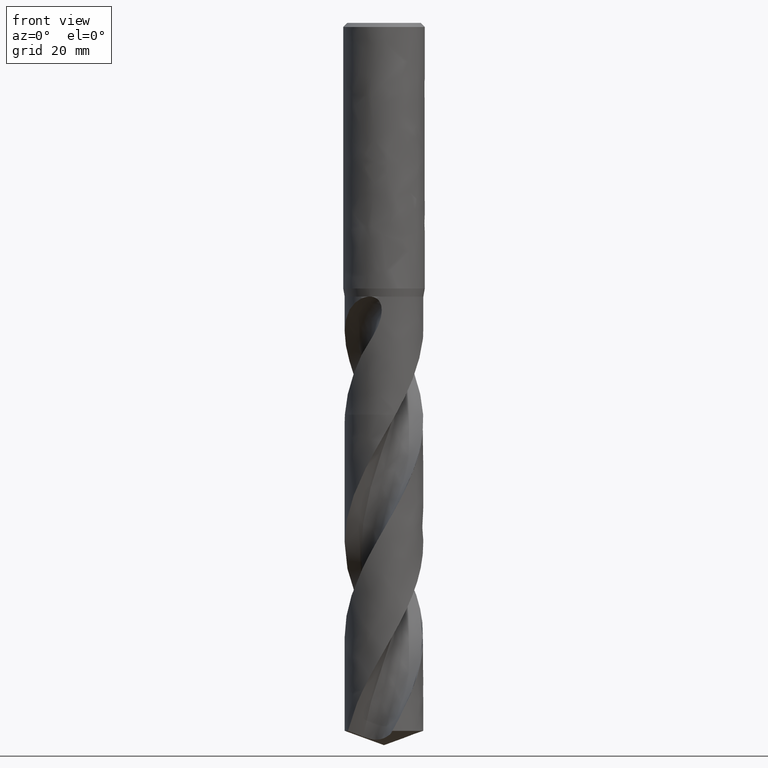
[diagram: clean part render]
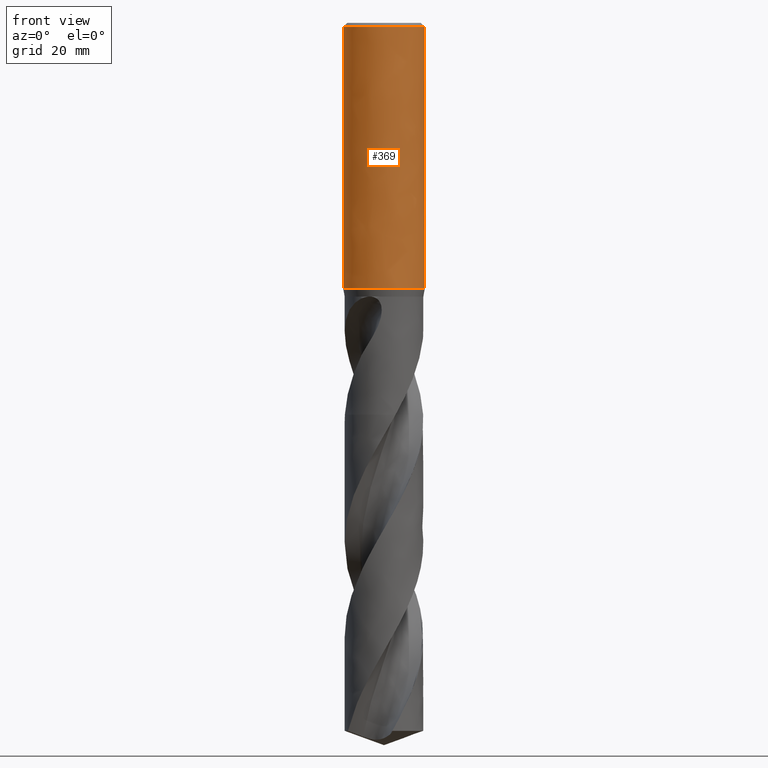
[diagram: same view with one face highlighted and labeled with its STEP entity id]
A machine part, front view. The second image highlights one B-rep face of the part: STEP entity #369.
In plain terms, the highlighted face is a freeform B-spline surface patch.
Its self-contained STEP definition (entity closure, byte-faithful):
#261 = VERTEX_POINT('', #262);
#262 = CARTESIAN_POINT('', (-7., 3.2213109404772E-15, -45.608));
#268 = EDGE_CURVE('', #261, #261, #269, .T.);
#269 = CIRCLE('', #270, 7.);
#270 = AXIS2_PLACEMENT_3D('', #271, #272, #273);
#271 = CARTESIAN_POINT('', (1.71002610419105E-31, 2.79268456077562E-15, -45.608));
#272 = DIRECTION('', (3.74939945665464E-33, 6.12323399573677E-17, -1.));
#273 = DIRECTION('', (-1., 6.12323399573677E-17, 0.));
#318 = VERTEX_POINT('', #319);
#319 = CARTESIAN_POINT('', (-7., 4.71489017671731E-16, -0.700000000000003));
#335 = EDGE_CURVE('', #318, #318, #336, .T.);
#336 = CIRCLE('', #337, 6.99999999999998);
#337 = AXIS2_PLACEMENT_3D('', #338, #339, #340);
#338 = CARTESIAN_POINT('', (2.62457961965824E-33, 4.28626379701575E-17, -0.700000000000003));
#339 = DIRECTION('', (3.74939945665464E-33, 6.12323399573677E-17, -1.));
#340 = DIRECTION('', (-1., 6.12323399573677E-17, 0.));
#369 = ADVANCED_FACE('', (#370, #381), #549, .T.);
#370 = FACE_OUTER_BOUND('', #371, .T.);
#371 = EDGE_LOOP('', (#372, #378, #379, #380));
#372 = ORIENTED_EDGE('', *, *, #373, .T.);
#373 = EDGE_CURVE('', #261, #318, #374, .T.);
#374 = LINE('', #375, #376);
#375 = CARTESIAN_POINT('', (-7., 3.2213109404772E-15, -45.608));
#376 = VECTOR('', #377, 44.908);
#377 = DIRECTION('', (0., -2.74982192280547E-15, 44.908));
#378 = ORIENTED_EDGE('', *, *, #335, .T.);
#379 = ORIENTED_EDGE('', *, *, #373, .F.);
#380 = ORIENTED_EDGE('', *, *, #268, .F.);
#381 = FACE_BOUND('', #382, .T.);
#382 = EDGE_LOOP('', (#383, #457, #465, #543));
#383 = ORIENTED_EDGE('', *, *, #384, .F.);
#384 = EDGE_CURVE('', #385, #387, #389, .T.);
#385 = VERTEX_POINT('', #386);
#386 = CARTESIAN_POINT('', (-4.06324993078201, 5.7, -18.5));
#387 = VERTEX_POINT('', #388);
#388 = CARTESIAN_POINT('', (4.06324993078201, 5.7, -18.5));
#389 = B_SPLINE_CURVE_WITH_KNOTS('', 3, (#390, #391, #392, #393, #394, #395, #396, #397, #398, #399, #400, #401, #402, #403, #404, #405, #406, #407, #408, #409, #410, #411, #412, #413, #414, #415, #416, #417, #418, #419, #420, #421, #422, #423, #424, #425, #426, #427, #428, #429, #430, #431, #432, #433, #434, #435, #436, #437, #438, #439, #440, #441, #442, #443, #444, #445, #446, #447, #448, #449, #450, #451, #452, #453, #454, #455, #456), .UNSPECIFIED., .F., .U., (4, 3, 3, 3, 3, 3, 3, 3, 3, 3, 3, 3, 3, 3, 3, 3, 3, 3, 3, 3, 3, 3, 4), (0., 0.137652612674856, 0.581674615493352, 1.02589785853412, 1.47034969570479, 1.91505817288418, 2.36004996586149, 2.80534752015793, 3.25096561594453, 3.69690793012529, 4.14316448342696, 4.58698529200485, 5.03080610058274, 5.47706265388441, 5.92300496806517, 6.36862306385177, 6.81392061814822, 7.25891241112553, 7.70362088830491, 8.14807272547559, 8.59229596851635, 9.03631797133485, 9.17397058400971), .UNSPECIFIED.);
#390 = CARTESIAN_POINT('', (-4.06324993078201, 5.7, -18.5));
#391 = CARTESIAN_POINT('', (-4.03108009970197, 5.7229322919139, -18.4766639302106));
#392 = CARTESIAN_POINT('', (-3.99861595897026, 5.74566363083592, -18.4535323516714));
#393 = CARTESIAN_POINT('', (-3.96586004453388, 5.76818464572433, -18.4306148004237));
#394 = CARTESIAN_POINT('', (-3.86020025029119, 5.84083002412971, -18.3566903262932));
#395 = CARTESIAN_POINT('', (-3.75143779387564, 5.91133058074139, -18.2849484386765));
#396 = CARTESIAN_POINT('', (-3.63968934440049, 5.9793529312341, -18.2157283919277));
#397 = CARTESIAN_POINT('', (-3.52789024814957, 6.04740611090384, -18.1464769731805));
#398 = CARTESIAN_POINT('', (-3.412991931501, 6.11304505514245, -18.0796822982564));
#399 = CARTESIAN_POINT('', (-3.29517046194852, 6.1759089716982, -18.0157115120181));
#400 = CARTESIAN_POINT('', (-3.17728836230353, 6.2388052375795, -17.951707806867));
#401 = CARTESIAN_POINT('', (-3.05634861998409, 6.29899246741486, -17.890460836824));
#402 = CARTESIAN_POINT('', (-2.93260217370229, 6.35608719974773, -17.8323608151023));
#403 = CARTESIAN_POINT('', (-2.80878427245867, 6.41321490031557, -17.774227244661));
#404 = CARTESIAN_POINT('', (-2.68200101594348, 6.46731667326961, -17.71917288053));
#405 = CARTESIAN_POINT('', (-2.55259435502097, 6.51799524844222, -17.6676019877691));
#406 = CARTESIAN_POINT('', (-2.42310525143483, 6.56870611002649, -17.615998240117));
#407 = CARTESIAN_POINT('', (-2.29080750306995, 6.61605884852133, -17.5678117433471));
#408 = CARTESIAN_POINT('', (-2.1561488099206, 6.65965632067288, -17.5234466333708));
#409 = CARTESIAN_POINT('', (-2.02139759052627, 6.70328374937825, -17.4790510393839));
#410 = CARTESIAN_POINT('', (-1.8840721775204, 6.74321678029959, -17.4384148918945));
#411 = CARTESIAN_POINT('', (-1.74473623348504, 6.77907777470982, -17.4019224788634));
#412 = CARTESIAN_POINT('', (-1.60529999033349, 6.81496458317735, -17.3654037972566));
#413 = CARTESIAN_POINT('', (-1.46361216577596, 6.84683279857773, -17.3329744656644));
#414 = CARTESIAN_POINT('', (-1.32035421695703, 6.87434831396867, -17.3049744737811));
#415 = CARTESIAN_POINT('', (-1.17699203794064, 6.90188384882538, -17.2769541099415));
#416 = CARTESIAN_POINT('', (-1.03179327426599, 6.925109275895, -17.2533197436505));
#417 = CARTESIAN_POINT('', (-0.885546959416218, 6.94376026247081, -17.2343403618247));
#418 = CARTESIAN_POINT('', (-0.739197590175887, 6.96242439170979, -17.2153476059278));
#419 = CARTESIAN_POINT('', (-0.591513672944381, 6.97654264270533, -17.2009807693389));
#420 = CARTESIAN_POINT('', (-0.443367564010626, 6.98594483253221, -17.1914130314609));
#421 = CARTESIAN_POINT('', (-0.296030061920882, 6.99529570359617, -17.1818975159355));
#422 = CARTESIAN_POINT('', (-0.147940269525964, 7., -17.1771103891362));
#423 = CARTESIAN_POINT('', (-6.73865229849339E-16, 7., -17.1771103891362));
#424 = CARTESIAN_POINT('', (0.147940269525962, 7., -17.1771103891362));
#425 = CARTESIAN_POINT('', (0.29603006192088, 6.99529570359617, -17.1818975159355));
#426 = CARTESIAN_POINT('', (0.443367564010624, 6.98594483253221, -17.1914130314609));
#427 = CARTESIAN_POINT('', (0.591513672944378, 6.97654264270533, -17.2009807693389));
#428 = CARTESIAN_POINT('', (0.739197590175884, 6.96242439170979, -17.2153476059278));
#429 = CARTESIAN_POINT('', (0.885546959416215, 6.94376026247081, -17.2343403618247));
#430 = CARTESIAN_POINT('', (1.03179327426598, 6.925109275895, -17.2533197436505));
#431 = CARTESIAN_POINT('', (1.17699203794064, 6.90188384882538, -17.2769541099415));
#432 = CARTESIAN_POINT('', (1.32035421695703, 6.87434831396867, -17.3049744737811));
#433 = CARTESIAN_POINT('', (1.46361216577595, 6.84683279857773, -17.3329744656644));
#434 = CARTESIAN_POINT('', (1.60529999033349, 6.81496458317735, -17.3654037972566));
#435 = CARTESIAN_POINT('', (1.74473623348503, 6.77907777470982, -17.4019224788634));
#436 = CARTESIAN_POINT('', (1.8840721775204, 6.74321678029959, -17.4384148918945));
#437 = CARTESIAN_POINT('', (2.02139759052626, 6.70328374937825, -17.4790510393839));
#438 = CARTESIAN_POINT('', (2.15614880992059, 6.65965632067288, -17.5234466333708));
#439 = CARTESIAN_POINT('', (2.29080750306994, 6.61605884852133, -17.5678117433471));
#440 = CARTESIAN_POINT('', (2.42310525143483, 6.5687061100265, -17.615998240117));
#441 = CARTESIAN_POINT('', (2.55259435502096, 6.51799524844222, -17.6676019877691));
#442 = CARTESIAN_POINT('', (2.68200101594348, 6.46731667326961, -17.71917288053));
#443 = CARTESIAN_POINT('', (2.80878427245867, 6.41321490031557, -17.774227244661));
#444 = CARTESIAN_POINT('', (2.93260217370228, 6.35608719974773, -17.8323608151023));
#445 = CARTESIAN_POINT('', (3.05634861998409, 6.29899246741486, -17.890460836824));
#446 = CARTESIAN_POINT('', (3.17728836230352, 6.2388052375795, -17.951707806867));
#447 = CARTESIAN_POINT('', (3.29517046194851, 6.1759089716982, -18.0157115120181));
#448 = CARTESIAN_POINT('', (3.412991931501, 6.11304505514245, -18.0796822982564));
#449 = CARTESIAN_POINT('', (3.52789024814956, 6.04740611090384, -18.1464769731805));
#450 = CARTESIAN_POINT('', (3.63968934440048, 5.9793529312341, -18.2157283919277));
#451 = CARTESIAN_POINT('', (3.75143779387564, 5.91133058074139, -18.2849484386765));
#452 = CARTESIAN_POINT('', (3.86020025029119, 5.84083002412971, -18.3566903262932));
#453 = CARTESIAN_POINT('', (3.96586004453388, 5.76818464572433, -18.4306148004237));
#454 = CARTESIAN_POINT('', (3.99861595897026, 5.74566363083593, -18.4535323516714));
#455 = CARTESIAN_POINT('', (4.03108009970197, 5.7229322919139, -18.4766639302106));
#456 = CARTESIAN_POINT('', (4.06324993078201, 5.7, -18.5));
#457 = ORIENTED_EDGE('', *, *, #458, .T.);
#458 = EDGE_CURVE('', #385, #459, #461, .T.);
#459 = VERTEX_POINT('', #460);
#460 = CARTESIAN_POINT('', (-4.06324993078201, 5.7, -26.5));
#461 = LINE('', #462, #463);
#462 = CARTESIAN_POINT('', (-4.06324993078201, 5.7, -18.5));
#463 = VECTOR('', #464, 8.);
#464 = DIRECTION('', (0., 8.88178419700125E-16, -8.));
#465 = ORIENTED_EDGE('', *, *, #466, .T.);
#466 = EDGE_CURVE('', #459, #467, #469, .T.);
#467 = VERTEX_POINT('', #468);
#468 = CARTESIAN_POINT('', (4.06324993078201, 5.7, -26.5));
#469 = B_SPLINE_CURVE_WITH_KNOTS('', 3, (#470, #471, #472, #473, #474, #475, #476, #477, #478, #479, #480, #481, #482, #483, #484, #485, #486, #487, #488, #489, #490, #491, #492, #493, #494, #495, #496, #497, #498, #499, #500, #501, #502, #503, #504, #505, #506, #507, #508, #509, #510, #511, #512, #513, #514, #515, #516, #517, #518, #519, #520, #521, #522, #523, #524, #525, #526, #527, #528, #529, #530, #531, #532, #533, #534, #535, #536, #537, #538, #539, #540, #541, #542), .UNSPECIFIED., .F., .U., (4, 3, 3, 3, 3, 3, 3, 3, 3, 3, 3, 3, 3, 3, 3, 3, 3, 3, 3, 3, 3, 3, 3, 3, 4), (0., 0.443065667120696, 0.885991413444213, 1.32875814304196, 1.77134482871167, 2.21372912601748, 2.65588845197264, 3.09780161615996, 3.53945099408801, 3.98082505360303, 4.2753551788783, 4.58709027809395, 4.88280283700067, 5.17967106949248, 5.47645142962782, 5.77314037145818, 6.0697361493131, 6.36623875183344, 6.81153829126186, 7.2565319483704, 7.70124213148333, 8.14569549946106, 8.58992009686662, 9.03394328676174, 9.17439583103418), .UNSPECIFIED.);
#470 = CARTESIAN_POINT('', (-4.06324993078201, 5.7, -26.5));
#471 = CARTESIAN_POINT('', (-3.95970414700307, 5.77381270153904, -26.5751123507814));
#472 = CARTESIAN_POINT('', (-3.85307330140329, 5.84556707051391, -26.6481301271283));
#473 = CARTESIAN_POINT('', (-3.74345786277871, 5.91494067845153, -26.7187252234427));
#474 = CARTESIAN_POINT('', (-3.6338770408728, 5.98429237810049, -26.7892980257207));
#475 = CARTESIAN_POINT('', (-3.52120975873985, 6.05132951367761, -26.8575155104877));
#476 = CARTESIAN_POINT('', (-3.40561057397174, 6.11570246320506, -26.9230218998342));
#477 = CARTESIAN_POINT('', (-3.29005289097682, 6.18005230191597, -26.988504771443));
#478 = CARTESIAN_POINT('', (-3.17144217842377, 6.24180729345365, -27.0513471073847));
#479 = CARTESIAN_POINT('', (-3.05000147476814, 6.30059449607042, -27.1111693993797));
#480 = CARTESIAN_POINT('', (-2.92861015301013, 6.35935779382222, -27.1709673656073));
#481 = CARTESIAN_POINT('', (-2.80424564049763, 6.4152247110733, -27.2278179536246));
#482 = CARTESIAN_POINT('', (-2.67721470958931, 6.46780653689946, -27.2813256083213));
#483 = CARTESIAN_POINT('', (-2.55024186805218, 6.52036431783218, -27.3348087947566));
#484 = CARTESIAN_POINT('', (-2.4204348072538, 6.56970881043612, -27.3850221152329));
#485 = CARTESIAN_POINT('', (-2.2881984068456, 6.61544768333256, -27.4315663304385));
#486 = CARTESIAN_POINT('', (-2.15602925430716, 6.66116329605437, -27.4780868759184));
#487 = CARTESIAN_POINT('', (-2.02123656744856, 6.70334313973294, -27.5210093966802));
#488 = CARTESIAN_POINT('', (-1.88433414011935, 6.74160847634907, -27.5599484861153));
#489 = CARTESIAN_POINT('', (-1.74750792998505, 6.77985250964226, -27.5988658971315));
#490 = CARTESIAN_POINT('', (-1.60835089271319, 6.81424694704305, -27.6338659309077));
#491 = CARTESIAN_POINT('', (-1.46748954508531, 6.84444843906842, -27.6645991924715));
#492 = CARTESIAN_POINT('', (-1.32671228023879, 6.87463190325652, -27.6953141087748));
#493 = CARTESIAN_POINT('', (-1.18398409041474, 6.9006789527923, -27.7218197789475));
#494 = CARTESIAN_POINT('', (-1.04003756564183, 6.92230610866454, -27.7438277326521));
#495 = CARTESIAN_POINT('', (-0.896180775239088, 6.94391978245228, -27.7658219668878));
#496 = CARTESIAN_POINT('', (-0.750837144703517, 6.96115817953797, -27.7833638872051));
#497 = CARTESIAN_POINT('', (-0.604825980246416, 6.97382144405916, -27.796250118801));
#498 = CARTESIAN_POINT('', (-0.50739232815007, 6.98227167534352, -27.8048491366283));
#499 = CARTESIAN_POINT('', (-0.409556862008328, 6.98869673890838, -27.8113873288122));
#500 = CARTESIAN_POINT('', (-0.311577914129582, 6.99306221933043, -27.8158296739636));
#501 = CARTESIAN_POINT('', (-0.207875527117454, 6.99768270924202, -27.8205315186568));
#502 = CARTESIAN_POINT('', (-0.103911699738552, 7., -27.8228896108638));
#503 = CARTESIAN_POINT('', (-6.73865229849338E-16, 7., -27.8228896108638));
#504 = CARTESIAN_POINT('', (0.0985708529689039, 7., -27.8228896108638));
#505 = CARTESIAN_POINT('', (0.197186228119405, 6.99791511081716, -27.8207680122178));
#506 = CARTESIAN_POINT('', (0.295578376007079, 6.99375674610127, -27.8165364295402));
#507 = CARTESIAN_POINT('', (0.394355050026195, 6.98958213008961, -27.8122883094239));
#508 = CARTESIAN_POINT('', (0.492996015126384, 6.98331407184112, -27.8059098870107));
#509 = CARTESIAN_POINT('', (0.591236291998922, 6.97498671303562, -27.7974359051263));
#510 = CARTESIAN_POINT('', (0.68944748996141, 6.96666181911036, -27.7889644315222));
#511 = CARTESIAN_POINT('', (0.787345716272395, 6.95627155863244, -27.778391225645));
#512 = CARTESIAN_POINT('', (0.884677634648972, 6.94387107331004, -27.7657724001045));
#513 = CARTESIAN_POINT('', (0.981979571530165, 6.93147440775303, -27.7531574615855));
#514 = CARTESIAN_POINT('', (1.0787999146218, 6.91705818939719, -27.7384874112078));
#515 = CARTESIAN_POINT('', (1.17490159172366, 6.90069606994579, -27.7218371974894));
#516 = CARTESIAN_POINT('', (1.27097309171737, 6.88433908840106, -27.7051922121428));
#517 = CARTESIAN_POINT('', (1.36640667684814, 6.86602397749929, -27.686554619886));
#518 = CARTESIAN_POINT('', (1.46098503373963, 6.84583981197259, -27.6660150638251));
#519 = CARTESIAN_POINT('', (1.55553367891334, 6.82566198728589, -27.6454819602498));
#520 = CARTESIAN_POINT('', (1.64930313893897, 6.80360041529903, -27.6230319414954));
#521 = CARTESIAN_POINT('', (1.74209812044936, 6.77975620053751, -27.5987678922745));
#522 = CARTESIAN_POINT('', (1.88146135765741, 6.74394599934169, -27.5623271667938));
#523 = CARTESIAN_POINT('', (2.01881656176525, 6.70406185494877, -27.5217407665972));
#524 = CARTESIAN_POINT('', (2.15359932213875, 6.66048121081981, -27.4773927809411));
#525 = CARTESIAN_POINT('', (2.28828949839803, 6.616930502829, -27.4330752585205));
#526 = CARTESIAN_POINT('', (2.42062065776446, 6.56962246287049, -27.3849342473117));
#527 = CARTESIAN_POINT('', (2.55014439422912, 6.51895417751821, -27.333373825548));
#528 = CARTESIAN_POINT('', (2.67958562027928, 6.46831816934801, -27.2818462492834));
#529 = CARTESIAN_POINT('', (2.80640483736632, 6.41425685848786, -27.2268330596783));
#530 = CARTESIAN_POINT('', (2.93025947098781, 6.35716756367854, -27.1687385712208));
#531 = CARTESIAN_POINT('', (3.05404257994967, 6.30011123729567, -27.1106776316777));
#532 = CARTESIAN_POINT('', (3.17501991758404, 6.23996035931803, -27.0494676535539));
#533 = CARTESIAN_POINT('', (3.29294002161901, 6.17709851095319, -26.985498971922));
#534 = CARTESIAN_POINT('', (3.41079942941088, 6.11426901905598, -26.9215632164707));
#535 = CARTESIAN_POINT('', (3.52573623692202, 6.04866255633922, -26.8548015949834));
#536 = CARTESIAN_POINT('', (3.63757395443044, 5.98064007661801, -26.7855814167308));
#537 = CARTESIAN_POINT('', (3.74936096570515, 5.91264843768855, -26.7163926222958));
#538 = CARTESIAN_POINT('', (3.85816223900028, 5.84217679499217, -26.6446801576931));
#539 = CARTESIAN_POINT('', (3.96386077570598, 5.76955871369897, -26.5707834613057));
#540 = CARTESIAN_POINT('', (3.99729512946056, 5.74658830469799, -26.5474086032867));
#541 = CARTESIAN_POINT('', (4.03042574723616, 5.7233987476352, -26.5238107385799));
#542 = CARTESIAN_POINT('', (4.06324993078201, 5.7, -26.5));
#543 = ORIENTED_EDGE('', *, *, #544, .F.);
#544 = EDGE_CURVE('', #387, #467, #545, .T.);
#545 = LINE('', #546, #547);
#546 = CARTESIAN_POINT('', (4.06324993078201, 5.7, -18.5));
#547 = VECTOR('', #548, 7.99999999999999);
#548 = DIRECTION('', (0., 0., -7.99999999999999));
#549 = (
   BOUNDED_SURFACE ()
   B_SPLINE_SURFACE (1, 2, ((#550, #551, #552, #553, #554, #555, #556, #557, #558), (#559, #560, #561, #562, #563, #564, #565, #566, #567)), .UNSPECIFIED., .F., .T., .U.)
   B_SPLINE_SURFACE_WITH_KNOTS ((2, 2), (3, 2, 2, 2, 3), (0., 1.), (0., 10.9955742875643, 21.9911485751286, 32.9867228626928, 43.9822971502571), .UNSPECIFIED.)
   GEOMETRIC_REPRESENTATION_ITEM ()
   RATIONAL_B_SPLINE_SURFACE (((1., 0.707106781186548, 1., 0.707106781186548, 1., 0.707106781186548, 1., 0.707106781186548, 1.), (1., 0.707106781186548, 1., 0.707106781186548, 1., 0.707106781186548, 1., 0.707106781186548, 1.)))
   REPRESENTATION_ITEM ('')
   SURFACE ()
);
#550 = CARTESIAN_POINT('', (-7., 3.2213109404772E-15, -45.608));
#551 = CARTESIAN_POINT('', (-7., 7., -45.608));
#552 = CARTESIAN_POINT('', (1.4791141972894E-31, 7., -45.608));
#553 = CARTESIAN_POINT('', (7., 7., -45.608));
#554 = CARTESIAN_POINT('', (7., 3.2213109404772E-15, -45.608));
#555 = CARTESIAN_POINT('', (7., -7., -45.608));
#556 = CARTESIAN_POINT('', (8.57252759403147E-16, -7., -45.608));
#557 = CARTESIAN_POINT('', (-7., -7., -45.608));
#558 = CARTESIAN_POINT('', (-7., 3.2213109404772E-15, -45.608));
#559 = CARTESIAN_POINT('', (-7., 4.71489017671731E-16, -0.700000000000003));
#560 = CARTESIAN_POINT('', (-7., 7., -0.700000000000002));
#561 = CARTESIAN_POINT('', (0., 7., -0.700000000000002));
#562 = CARTESIAN_POINT('', (7., 7., -0.700000000000002));
#563 = CARTESIAN_POINT('', (7., 4.71489017671731E-16, -0.700000000000003));
#564 = CARTESIAN_POINT('', (7., -7., -0.700000000000003));
#565 = CARTESIAN_POINT('', (8.57252759403147E-16, -7., -0.700000000000003));
#566 = CARTESIAN_POINT('', (-7., -7., -0.700000000000003));
#567 = CARTESIAN_POINT('', (-7., 4.71489017671731E-16, -0.700000000000003));